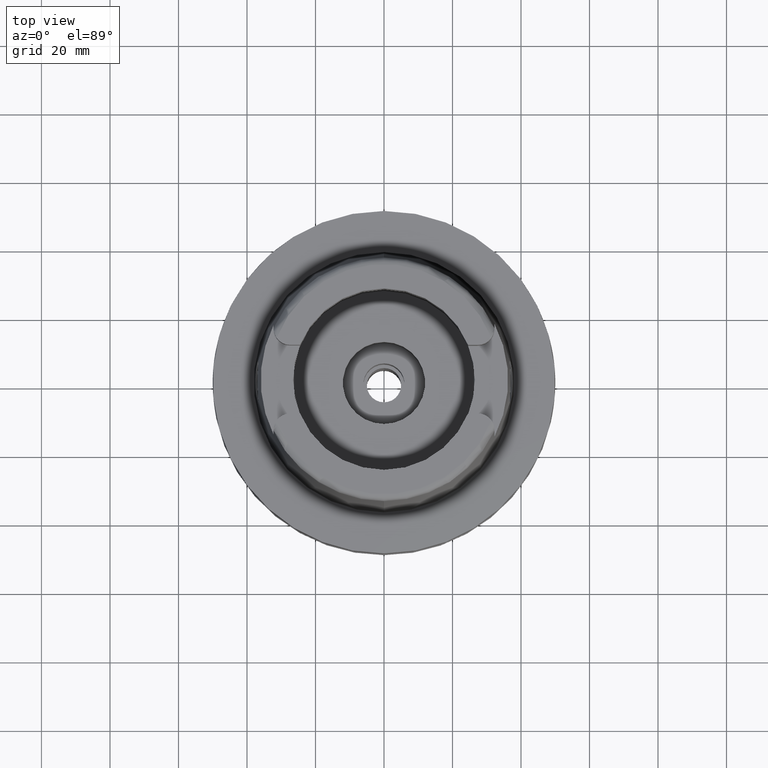
[diagram: clean part render]
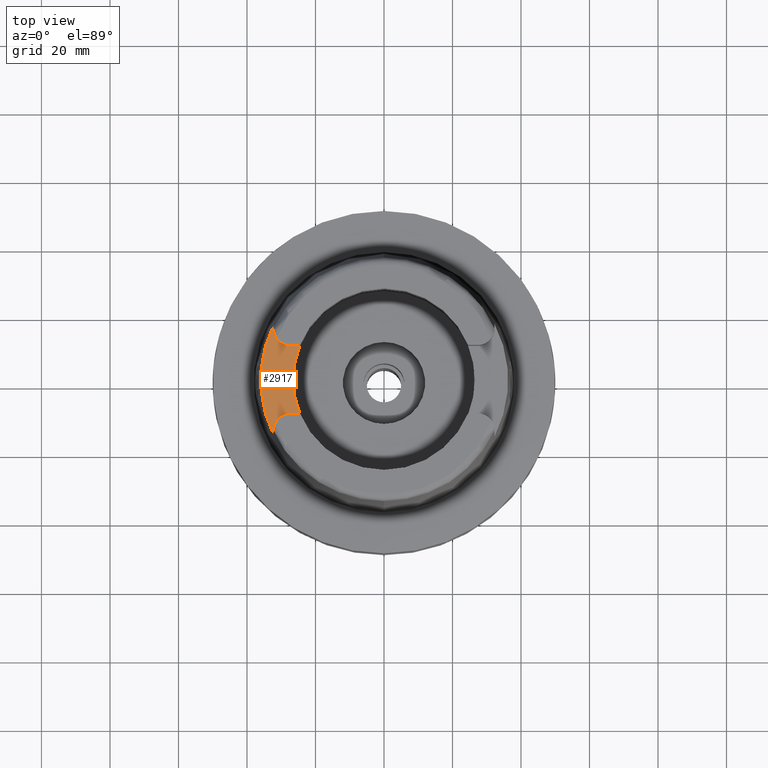
[diagram: same view with one face highlighted and labeled with its STEP entity id]
A machine part, top view. The second image highlights one B-rep face of the part: STEP entity #2917.
In plain terms, the highlighted planar face has unit normal (0, 0, 1).
Its self-contained STEP definition (entity closure, byte-faithful):
#100=CARTESIAN_POINT('',(0.E0,0.E0,4.E1));
#101=DIRECTION('',(0.E0,0.E0,1.E0));
#102=DIRECTION('',(-9.259134021805E-1,3.777358490566E-1,0.E0));
#103=AXIS2_PLACEMENT_3D('',#100,#101,#102);
#108=DIRECTION('',(-1.E0,1.435733797137E-13,0.E0));
#109=VECTOR('',#108,2.833294842218E0);
#110=CARTESIAN_POINT('',(-2.453670515778E1,-1.001E1,4.E1));
#111=LINE('',#110,#109);
#115=CARTESIAN_POINT('',(-2.737E1,-1.489E1,4.E1));
#116=DIRECTION('',(0.E0,0.E0,1.E0));
#117=DIRECTION('',(0.E0,1.E0,0.E0));
#118=AXIS2_PLACEMENT_3D('',#115,#116,#117);
#123=DIRECTION('',(1.119083709708E-6,-9.999999999994E-1,-1.731560047849E-13));
#124=VECTOR('',#123,1.107940431483E0);
#125=CARTESIAN_POINT('',(-3.225E1,-1.489E1,4.E1));
#126=LINE('',#125,#124);
#130=CARTESIAN_POINT('',(0.E0,0.E0,4.E1));
#131=DIRECTION('',(0.E0,0.E0,-1.E0));
#132=DIRECTION('',(-8.958345712660E-1,-4.443876921391E-1,0.E0));
#133=AXIS2_PLACEMENT_3D('',#130,#131,#132);
#138=DIRECTION('',(4.825266097351E-6,-9.999999999884E-1,1.731606717193E-13));
#139=VECTOR('',#138,1.107910570861E0);
#140=CARTESIAN_POINT('',(-3.225000534596E1,1.599791057085E1,4.E1));
#141=LINE('',#140,#139);
#145=CARTESIAN_POINT('',(-2.737E1,1.489E1,4.E1));
#146=DIRECTION('',(0.E0,0.E0,1.E0));
#147=DIRECTION('',(-1.E0,0.E0,0.E0));
#148=AXIS2_PLACEMENT_3D('',#145,#146,#147);
#153=DIRECTION('',(1.E0,1.442003377037E-13,0.E0));
#154=VECTOR('',#153,2.833294842218E0);
#155=CARTESIAN_POINT('',(-2.737E1,1.001E1,4.E1));
#156=LINE('',#155,#154);
#2482=CARTESIAN_POINT('',(-2.737E1,1.001E1,4.E1));
#2483=VERTEX_POINT('',#2482);
#2484=CARTESIAN_POINT('',(-3.225E1,1.489E1,4.E1));
#2485=VERTEX_POINT('',#2484);
#2488=CARTESIAN_POINT('',(-2.453670515778E1,1.001E1,4.E1));
#2489=VERTEX_POINT('',#2488);
#2490=CARTESIAN_POINT('',(-2.453670515778E1,-1.001E1,4.E1));
#2491=VERTEX_POINT('',#2490);
#2496=CARTESIAN_POINT('',(-2.737E1,-1.001E1,4.E1));
#2497=VERTEX_POINT('',#2496);
#2498=CARTESIAN_POINT('',(-3.225E1,-1.489E1,4.E1));
#2499=VERTEX_POINT('',#2498);
#2500=CARTESIAN_POINT('',(-3.224999876012E1,-1.599794043148E1,4.E1));
#2501=VERTEX_POINT('',#2500);
#2502=CARTESIAN_POINT('',(-3.224999999999E1,1.599793480981E1,4.E1));
#2503=VERTEX_POINT('',#2502);
#2897=CARTESIAN_POINT('',(0.E0,0.E0,4.E1));
#2898=DIRECTION('',(0.E0,0.E0,1.E0));
#2899=DIRECTION('',(0.E0,1.E0,0.E0));
#2900=AXIS2_PLACEMENT_3D('',#2897,#2898,#2899);
#2901=PLANE('',#2900);
#2902=ORIENTED_EDGE('',*,*,#2880,.T.);
#2904=ORIENTED_EDGE('',*,*,#2903,.T.);
#2906=ORIENTED_EDGE('',*,*,#2905,.T.);
#2908=ORIENTED_EDGE('',*,*,#2907,.T.);
#2910=ORIENTED_EDGE('',*,*,#2909,.T.);
#2912=ORIENTED_EDGE('',*,*,#2911,.T.);
#2913=ORIENTED_EDGE('',*,*,#2852,.T.);
#2914=ORIENTED_EDGE('',*,*,#2869,.T.);
#2915=EDGE_LOOP('',(#2902,#2904,#2906,#2908,#2910,#2912,#2913,#2914));
#2916=FACE_OUTER_BOUND('',#2915,.F.);
#104=CIRCLE('',#103,2.65E1);
#119=CIRCLE('',#118,4.88E0);
#134=CIRCLE('',#133,3.599995025244E1);
#149=CIRCLE('',#148,4.88E0);
#2852=EDGE_CURVE('',#2485,#2483,#149,.T.);
#2869=EDGE_CURVE('',#2483,#2489,#156,.T.);
#2880=EDGE_CURVE('',#2489,#2491,#104,.T.);
#2903=EDGE_CURVE('',#2491,#2497,#111,.T.);
#2905=EDGE_CURVE('',#2497,#2499,#119,.T.);
#2907=EDGE_CURVE('',#2499,#2501,#126,.T.);
#2909=EDGE_CURVE('',#2501,#2503,#134,.T.);
#2911=EDGE_CURVE('',#2503,#2485,#141,.T.);
#2917=ADVANCED_FACE('',(#2916),#2901,.T.);